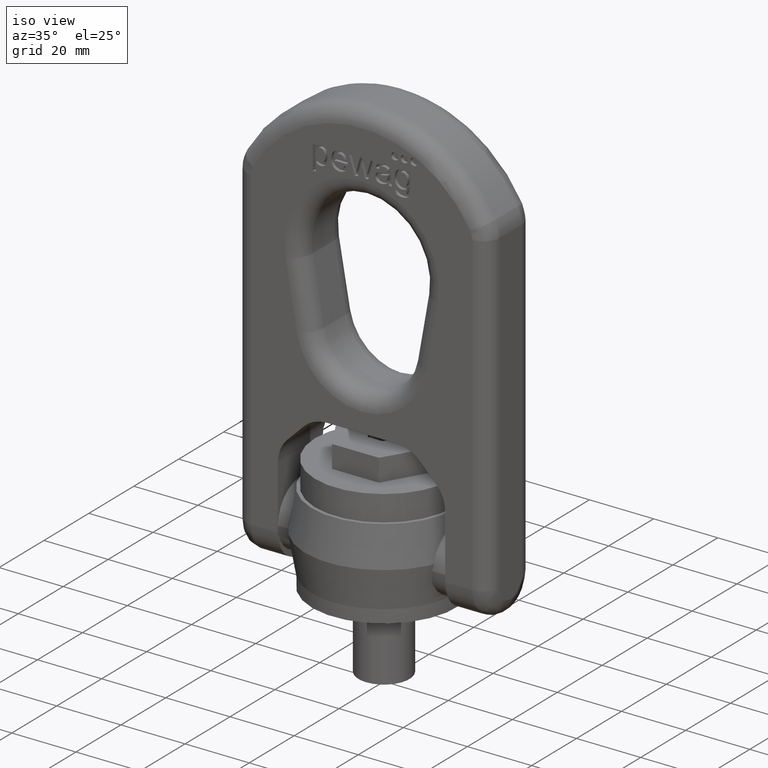
[diagram: clean part render]
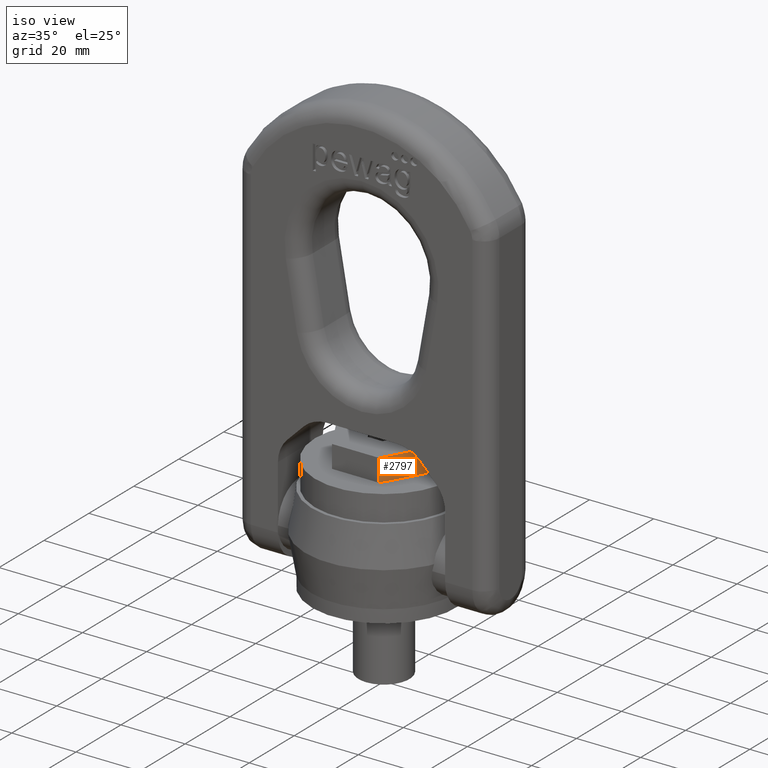
[diagram: same view with one face highlighted and labeled with its STEP entity id]
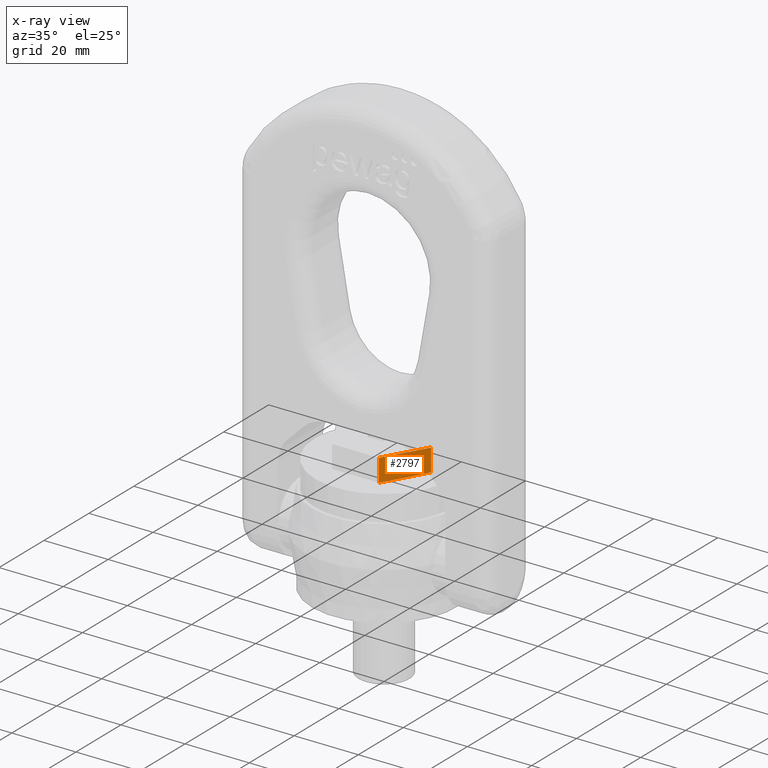
[diagram: x-ray of the same camera — body ghosted, the highlighted face saturated]
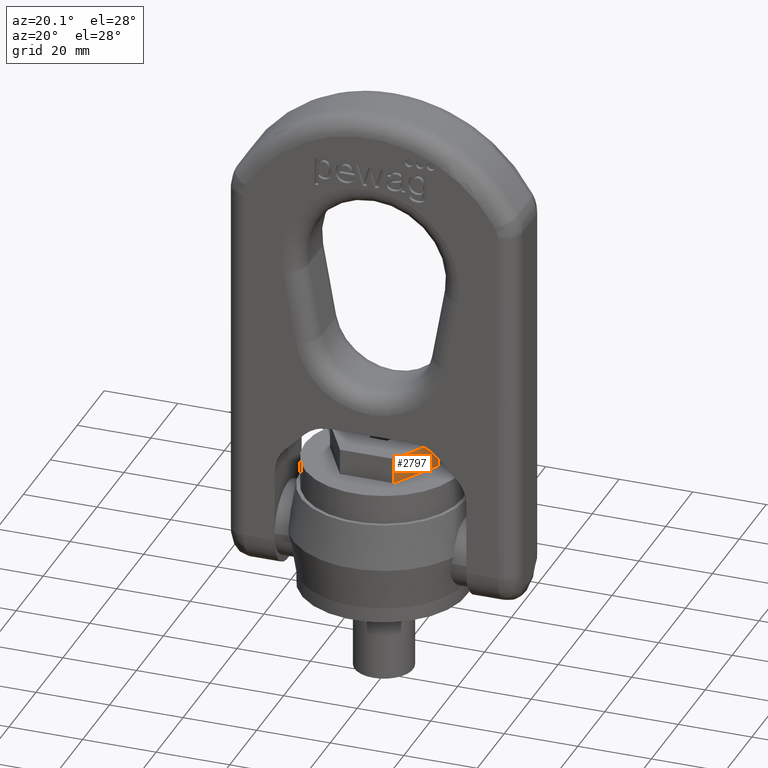
[diagram: same view with one face highlighted and labeled with its STEP entity id]
A machine part, iso view. The second image highlights one B-rep face of the part: STEP entity #2797.
The next image is the same camera in x-ray: the body ghosted, the highlighted face saturated — about 0% of this face is hidden behind the body in this view.
A second angle (auxiliary view) of the same face is appended — the face is thin or edge-on in the first view.
In plain terms, the highlighted planar face has unit normal (-0.866, 0.5, 0).
Its self-contained STEP definition (entity closure, byte-faithful):
#1733=LINE('',#6970,#2041);
#1738=LINE('',#6980,#2046);
#1740=LINE('',#6984,#2048);
#1741=LINE('',#6986,#2049);
#2041=VECTOR('',#6102,1.);
#2046=VECTOR('',#6111,1.);
#2048=VECTOR('',#6115,1.);
#2049=VECTOR('',#6116,1.);
#2440=FACE_OUTER_BOUND('',#3156,.T.);
#2671=PLANE('',#5847);
#2797=ADVANCED_FACE('',(#2440),#2671,.F.);
#3156=EDGE_LOOP('',(#3463,#3464,#3465,#3466));
#3463=ORIENTED_EDGE('',*,*,#5129,.T.);
#3464=ORIENTED_EDGE('',*,*,#5136,.F.);
#3465=ORIENTED_EDGE('',*,*,#5137,.F.);
#3466=ORIENTED_EDGE('',*,*,#5134,.T.);
#4709=VERTEX_POINT('',#6969);
#4710=VERTEX_POINT('',#6971);
#4713=VERTEX_POINT('',#6981);
#4714=VERTEX_POINT('',#6985);
#5129=EDGE_CURVE('',#4710,#4709,#1733,.T.);
#5134=EDGE_CURVE('',#4713,#4710,#1738,.T.);
#5136=EDGE_CURVE('',#4714,#4709,#1740,.T.);
#5137=EDGE_CURVE('',#4713,#4714,#1741,.T.);
#5847=AXIS2_PLACEMENT_3D('',#6987,#6117,#6118);
#6102=DIRECTION('',(0.5,0.866025403784439,0.));
#6111=DIRECTION('',(0.,0.,-1.));
#6115=DIRECTION('',(0.,0.,-1.));
#6116=DIRECTION('',(0.5,0.866025403784439,0.));
#6117=DIRECTION('',(-0.866025403784439,0.5,0.));
#6118=DIRECTION('',(-0.5,-0.866025403784439,0.));
#6969=CARTESIAN_POINT('',(14.6646968374165,1.73472347597681E-15,36.));
#6970=CARTESIAN_POINT('',(7.33234841870825,-12.7,36.));
#6971=CARTESIAN_POINT('',(7.33234841870825,-12.7,36.));
#6980=CARTESIAN_POINT('',(7.33234841870825,-12.7,43.));
#6981=CARTESIAN_POINT('',(7.33234841870825,-12.7,43.));
#6984=CARTESIAN_POINT('',(14.6646968374165,1.73472347597681E-15,43.));
#6985=CARTESIAN_POINT('',(14.6646968374165,1.73472347597681E-15,43.));
#6986=CARTESIAN_POINT('',(7.33234841870825,-12.7,43.));
#6987=CARTESIAN_POINT('',(7.33234841870825,-12.7,43.));